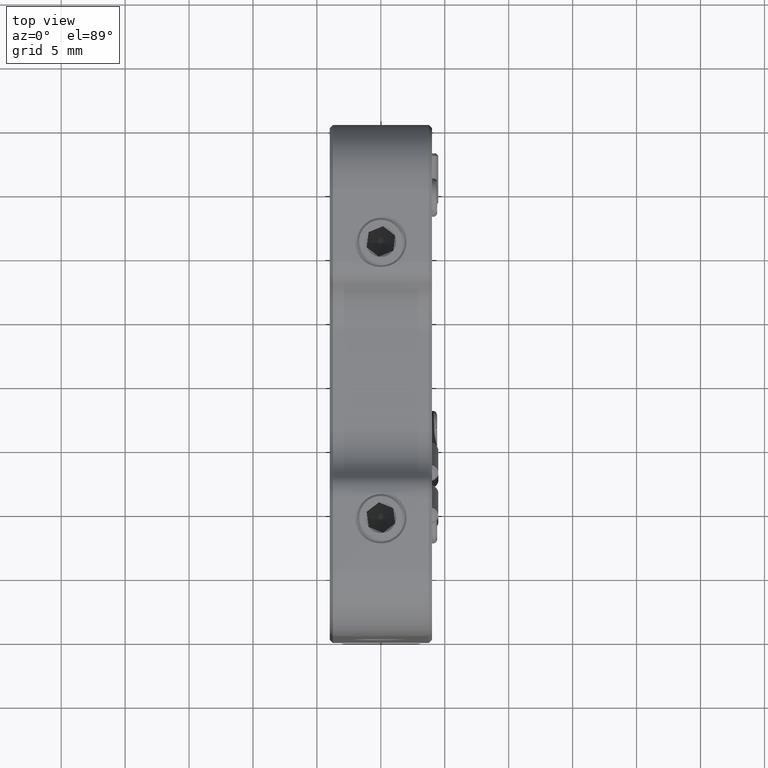
[diagram: clean part render]
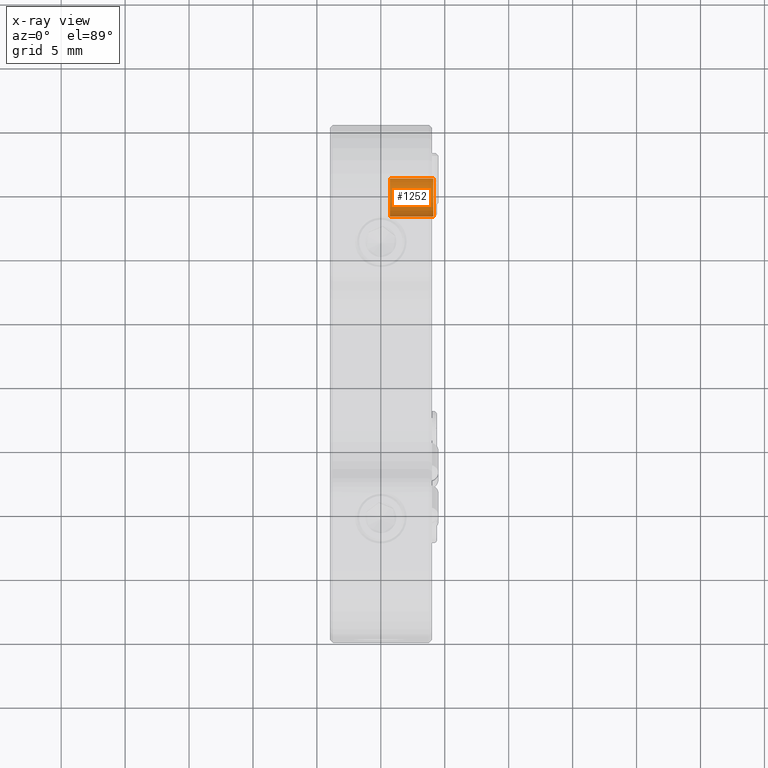
[diagram: x-ray — body ghosted, one internal face saturated and labeled with its STEP entity id]
A machine part, top view, then the same camera in x-ray: the body is ghosted and one INTERNAL B-rep face — a face not visible from any outside direction — is saturated and labeled: STEP entity #1252.
In plain terms, the highlighted cylindrical surface (edge-blend (fillet) strip) has radius 1.5 mm, axis along (-1, -0, 0).
Its self-contained STEP definition (entity closure, byte-faithful):
#337 = CARTESIAN_POINT ( 'NONE',  ( 0.6999999999999996225, 15.98783277212397991, 4.309333688885863545 ) ) ;
#377 = DIRECTION ( 'NONE',  ( -1.000000000000000000, -6.521546800413713295E-35, 1.539833748442290374E-34 ) ) ;
#405 = EDGE_CURVE ( 'NONE', #3403, #12082, #18104, .T. ) ;
#432 = EDGE_CURVE ( 'NONE', #12082, #9753, #630, .T. ) ;
#630 = LINE ( 'NONE', #16928, #13989 ) ;
#1252 = ADVANCED_FACE ( 'NONE', ( #10348 ), #7431, .T. ) ;
#2828 = DIRECTION ( 'NONE',  ( 0.000000000000000000, 0.9918885147493200494, -0.1271108740760913680 ) ) ;
#3084 = CARTESIAN_POINT ( 'NONE',  ( 0.6999999999999996225, 13.01216722787602009, 4.690666311114137343 ) ) ;
#3403 = VERTEX_POINT ( 'NONE', #9425 ) ;
#5290 = DIRECTION ( 'NONE',  ( -1.000000000000000000, -6.521546800413713295E-35, 1.539833748442290374E-34 ) ) ;
#5359 = CARTESIAN_POINT ( 'NONE',  ( 4.399999999999999467, 14.50000000000000000, 4.500000000000000888 ) ) ;
#5433 = LINE ( 'NONE', #19024, #17611 ) ;
#5542 = CARTESIAN_POINT ( 'NONE',  ( 4.099999999999999645, 13.01216722787602009, 4.690666311114137343 ) ) ;
#5783 = ORIENTED_EDGE ( 'NONE', *, *, #432, .T. ) ;
#6422 = VERTEX_POINT ( 'NONE', #337 ) ;
#7431 = CYLINDRICAL_SURFACE ( 'NONE', #7494, 1.500000000000013101 ) ;
#7494 = AXIS2_PLACEMENT_3D ( 'NONE', #5359, #5290, #9949 ) ;
#8919 = EDGE_CURVE ( 'NONE', #3403, #6422, #5433, .T. ) ;
#9028 = DIRECTION ( 'NONE',  ( 0.000000000000000000, 0.9918885147493200494, -0.1271108740760913680 ) ) ;
#9425 = CARTESIAN_POINT ( 'NONE',  ( 4.099999999999999645, 15.98783277212397991, 4.309333688885863545 ) ) ;
#9464 = AXIS2_PLACEMENT_3D ( 'NONE', #18234, #12067, #9028 ) ;
#9753 = VERTEX_POINT ( 'NONE', #3084 ) ;
#9949 = DIRECTION ( 'NONE',  ( 0.000000000000000000, -0.9918885147493200494, 0.1271108740760913680 ) ) ;
#10348 = FACE_OUTER_BOUND ( 'NONE', #14121, .T. ) ;
#10982 = ORIENTED_EDGE ( 'NONE', *, *, #19495, .T. ) ;
#12067 = DIRECTION ( 'NONE',  ( 1.000000000000000000, 6.521546800413713295E-35, -1.539833748442290374E-34 ) ) ;
#12082 = VERTEX_POINT ( 'NONE', #5542 ) ;
#12174 = AXIS2_PLACEMENT_3D ( 'NONE', #16793, #18517, #2828 ) ;
#13989 = VECTOR ( 'NONE', #16862, 1000.000000000000000 ) ;
#14121 = EDGE_LOOP ( 'NONE', ( #16124, #18731, #5783, #10982 ) ) ;
#16124 = ORIENTED_EDGE ( 'NONE', *, *, #8919, .F. ) ;
#16469 = CIRCLE ( 'NONE', #9464, 1.500000000000013101 ) ;
#16793 = CARTESIAN_POINT ( 'NONE',  ( 4.099999999999999645, 14.50000000000000000, 4.500000000000000888 ) ) ;
#16862 = DIRECTION ( 'NONE',  ( -1.000000000000000000, -6.521546800413713295E-35, 1.539833748442290374E-34 ) ) ;
#16928 = CARTESIAN_POINT ( 'NONE',  ( 4.399999999999999467, 13.01216722787600766, 4.690666311114139120 ) ) ;
#17611 = VECTOR ( 'NONE', #377, 1000.000000000000000 ) ;
#18104 = CIRCLE ( 'NONE', #12174, 1.500000000000013101 ) ;
#18234 = CARTESIAN_POINT ( 'NONE',  ( 0.6999999999999996225, 14.50000000000000000, 4.500000000000000888 ) ) ;
#18517 = DIRECTION ( 'NONE',  ( -1.000000000000000000, -6.521546800413713295E-35, 1.539833748442290374E-34 ) ) ;
#18731 = ORIENTED_EDGE ( 'NONE', *, *, #405, .T. ) ;
#19024 = CARTESIAN_POINT ( 'NONE',  ( 4.399999999999999467, 15.98783277212399412, 4.309333688885861768 ) ) ;
#19495 = EDGE_CURVE ( 'NONE', #9753, #6422, #16469, .T. ) ;